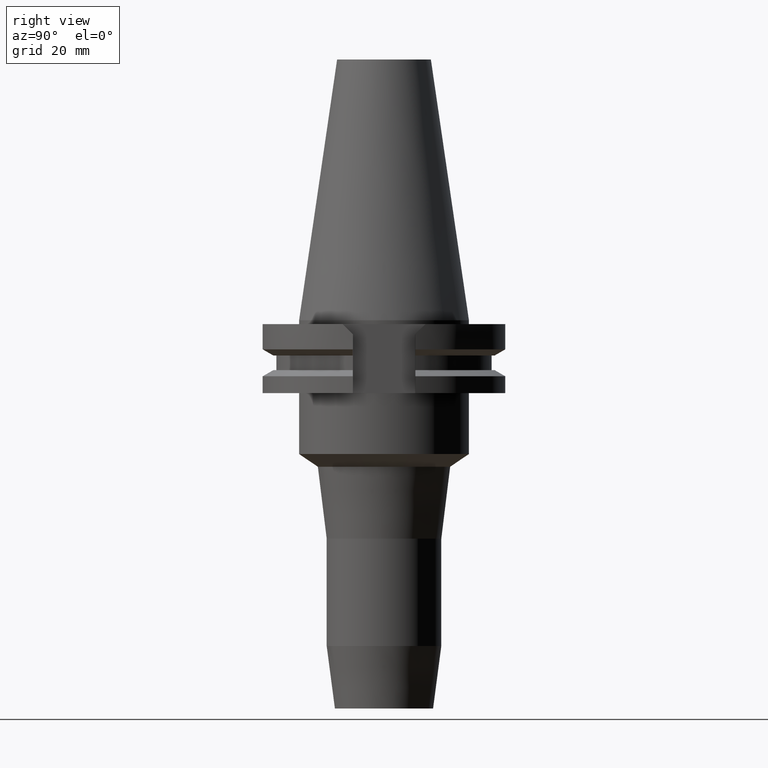
[diagram: clean part render]
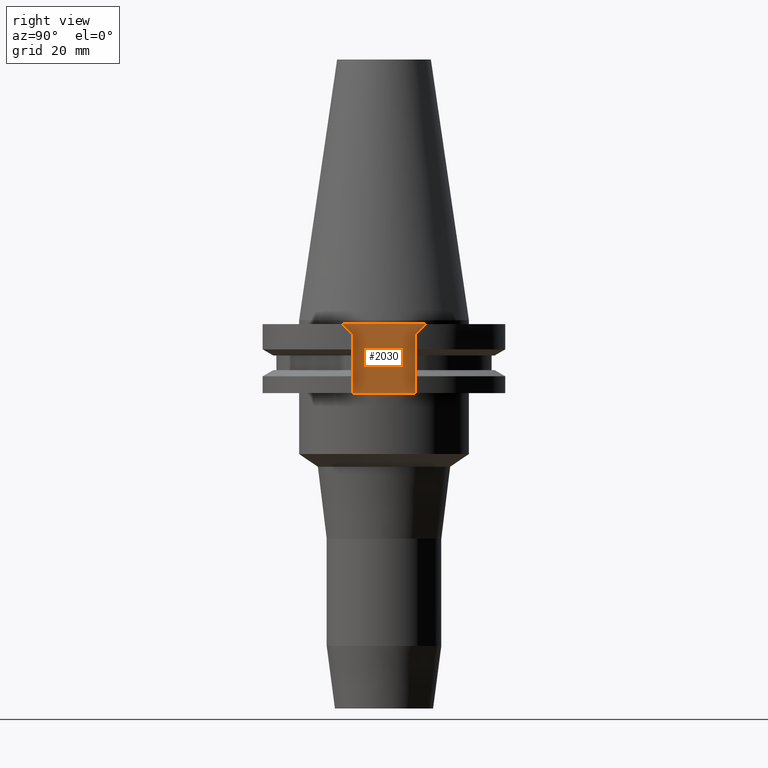
[diagram: same view with one face highlighted and labeled with its STEP entity id]
A machine part, right view. The second image highlights one B-rep face of the part: STEP entity #2030.
In plain terms, the highlighted planar face has unit normal (1, 0, 0).
Its self-contained STEP definition (entity closure, byte-faithful):
#589=DIRECTION('',(0.E0,-1.E0,0.E0));
#590=VECTOR('',#589,1.638E1);
#591=CARTESIAN_POINT('',(2.257E1,8.19E0,-1.905E1));
#592=LINE('',#591,#590);
#596=DIRECTION('',(0.E0,0.E0,1.E0));
#597=VECTOR('',#596,1.535E1);
#598=CARTESIAN_POINT('',(2.257E1,-8.19E0,-1.905E1));
#599=LINE('',#598,#597);
#603=DIRECTION('',(0.E0,-7.071067811865E-1,7.071067811865E-1));
#604=VECTOR('',#603,3.818376618407E0);
#605=CARTESIAN_POINT('',(2.257E1,-8.19E0,-3.7E0));
#606=LINE('',#605,#604);
#610=DIRECTION('',(0.E0,-7.071067811865E-1,-7.071067811865E-1));
#611=VECTOR('',#610,3.818376618407E0);
#612=CARTESIAN_POINT('',(2.257E1,1.089E1,-1.E0));
#613=LINE('',#612,#611);
#617=DIRECTION('',(0.E0,0.E0,-1.E0));
#618=VECTOR('',#617,1.535E1);
#619=CARTESIAN_POINT('',(2.257E1,8.19E0,-3.7E0));
#620=LINE('',#619,#618);
#843=DIRECTION('',(0.E0,-1.E0,0.E0));
#844=VECTOR('',#843,2.178E1);
#845=CARTESIAN_POINT('',(2.257E1,1.089E1,-1.E0));
#846=LINE('',#845,#844);
#1372=CARTESIAN_POINT('',(2.257E1,8.19E0,-1.905E1));
#1373=CARTESIAN_POINT('',(2.257E1,-8.19E0,-1.905E1));
#1374=VERTEX_POINT('',#1372);
#1375=VERTEX_POINT('',#1373);
#1392=CARTESIAN_POINT('',(2.257E1,-8.19E0,-3.7E0));
#1393=VERTEX_POINT('',#1392);
#1394=CARTESIAN_POINT('',(2.257E1,-1.089E1,-1.E0));
#1395=VERTEX_POINT('',#1394);
#1396=CARTESIAN_POINT('',(2.257E1,1.089E1,-1.E0));
#1397=VERTEX_POINT('',#1396);
#1398=CARTESIAN_POINT('',(2.257E1,8.19E0,-3.7E0));
#1399=VERTEX_POINT('',#1398);
#2012=CARTESIAN_POINT('',(2.257E1,0.E0,0.E0));
#2013=DIRECTION('',(1.E0,0.E0,0.E0));
#2014=DIRECTION('',(0.E0,0.E0,-1.E0));
#2015=AXIS2_PLACEMENT_3D('',#2012,#2013,#2014);
#2016=PLANE('',#2015);
#2017=ORIENTED_EDGE('',*,*,#1985,.T.);
#2019=ORIENTED_EDGE('',*,*,#2018,.T.);
#2021=ORIENTED_EDGE('',*,*,#2020,.T.);
#2023=ORIENTED_EDGE('',*,*,#2022,.F.);
#2025=ORIENTED_EDGE('',*,*,#2024,.T.);
#2027=ORIENTED_EDGE('',*,*,#2026,.T.);
#2028=EDGE_LOOP('',(#2017,#2019,#2021,#2023,#2025,#2027));
#2029=FACE_OUTER_BOUND('',#2028,.F.);
#1985=EDGE_CURVE('',#1374,#1375,#592,.T.);
#2018=EDGE_CURVE('',#1375,#1393,#599,.T.);
#2020=EDGE_CURVE('',#1393,#1395,#606,.T.);
#2022=EDGE_CURVE('',#1397,#1395,#846,.T.);
#2024=EDGE_CURVE('',#1397,#1399,#613,.T.);
#2026=EDGE_CURVE('',#1399,#1374,#620,.T.);
#2030=ADVANCED_FACE('',(#2029),#2016,.T.);